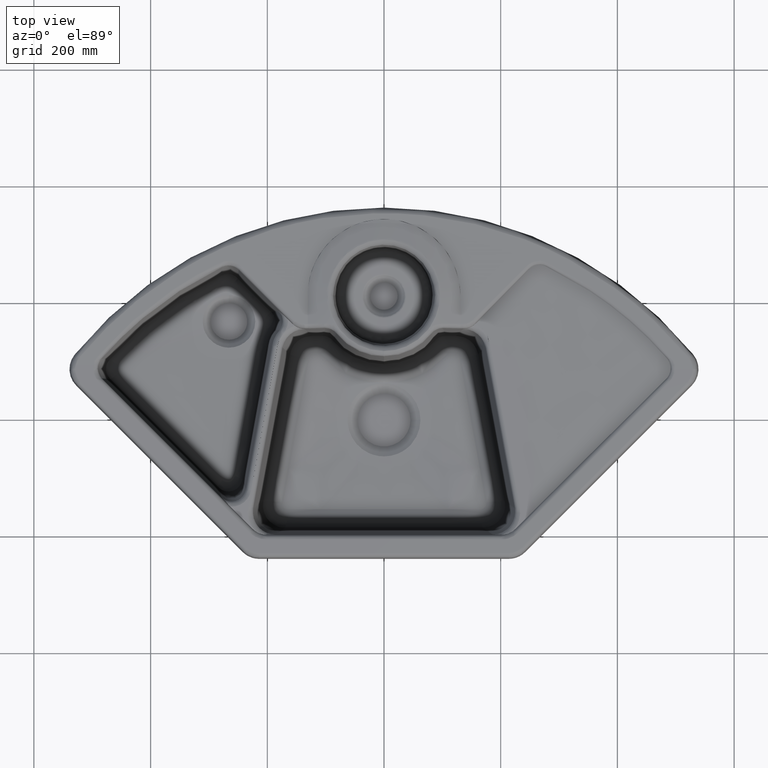
[diagram: clean part render]
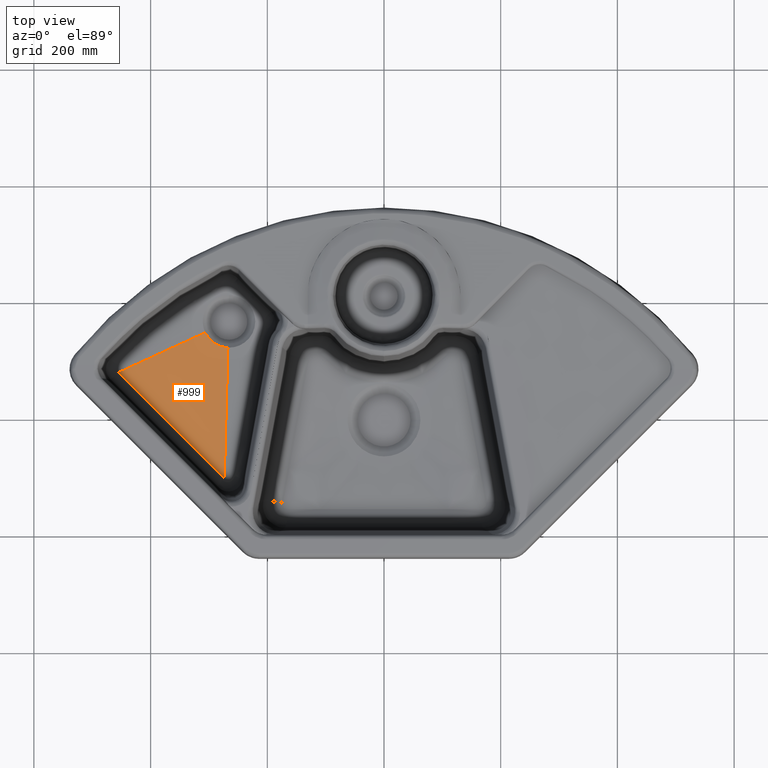
[diagram: same view with one face highlighted and labeled with its STEP entity id]
A machine part, top view. The second image highlights one B-rep face of the part: STEP entity #999.
In plain terms, the highlighted face is a freeform B-spline surface patch.
Its self-contained STEP definition (entity closure, byte-faithful):
#213=B_SPLINE_SURFACE_WITH_KNOTS('',3,1,((#26245,#26246),(#26247,#26248),
(#26249,#26250),(#26251,#26252),(#26253,#26254),(#26255,#26256),(#26257,
#26258)),.UNSPECIFIED.,.F.,.F.,.F.,(4,1,1,1,4),(2,2),(0.,0.25,0.5,0.75,1.),
(0.,1.),.UNSPECIFIED.);
#999=ADVANCED_FACE('',(#1568),#213,.F.);
#1568=FACE_OUTER_BOUND('',#2096,.T.);
#2096=EDGE_LOOP('',(#3639,#3640,#3641,#3642));
#3639=ORIENTED_EDGE('',*,*,#6566,.F.);
#3640=ORIENTED_EDGE('',*,*,#6642,.F.);
#3641=ORIENTED_EDGE('',*,*,#6643,.F.);
#3642=ORIENTED_EDGE('',*,*,#6644,.F.);
#5434=VERTEX_POINT('',#23123);
#5435=VERTEX_POINT('',#23124);
#5473=VERTEX_POINT('',#26235);
#5474=VERTEX_POINT('',#26242);
#6566=EDGE_CURVE('',#5434,#5435,#7962,.T.);
#6642=EDGE_CURVE('',#5473,#5434,#8030,.T.);
#6643=EDGE_CURVE('',#5474,#5473,#8031,.T.);
#6644=EDGE_CURVE('',#5435,#5474,#8032,.T.);
#7962=B_SPLINE_CURVE_WITH_KNOTS('',3,(#23119,#23120,#23121,#23122),.UNSPECIFIED.,
 .F.,.F.,(4,4),(0.,1.),.UNSPECIFIED.);
#8030=B_SPLINE_CURVE_WITH_KNOTS('',3,(#26228,#26229,#26230,#26231,#26232,
#26233,#26234),.UNSPECIFIED.,.F.,.F.,(4,1,1,1,4),(0.,0.124999373435028,0.249998746870056,
0.499997493740112,1.),.UNSPECIFIED.);
#8031=B_SPLINE_CURVE_WITH_KNOTS('',3,(#26236,#26237,#26238,#26239,#26240,
#26241),.UNSPECIFIED.,.F.,.F.,(4,2,4),(0.,0.5,1.),.UNSPECIFIED.);
#8032=B_SPLINE_CURVE_WITH_KNOTS('',1,(#26243,#26244),.UNSPECIFIED.,.F.,.F.,
(2,2),(0.,1.),.UNSPECIFIED.);
#23119=CARTESIAN_POINT('',(-273.77036591936,-100.701639683403,-118.));
#23120=CARTESIAN_POINT('',(-334.084285836055,-40.3877197667082,-118.));
#23121=CARTESIAN_POINT('',(-394.39820575261,19.9262001498467,-118.));
#23122=CARTESIAN_POINT('',(-454.712125669304,80.2401200665414,-118.));
#23123=CARTESIAN_POINT('',(-273.77036591936,-100.701639683403,-118.));
#23124=CARTESIAN_POINT('',(-454.712125669304,80.2401200665414,-118.));
#26228=CARTESIAN_POINT('',(-267.493104598134,122.921956911898,-126.));
#26229=CARTESIAN_POINT('',(-267.754657153185,113.604307053763,-125.666666666667));
#26230=CARTESIAN_POINT('',(-268.277762263287,94.9690073374907,-125.));
#26231=CARTESIAN_POINT('',(-269.323972483492,57.6984079049412,-123.666666666667));
#26232=CARTESIAN_POINT('',(-271.154850857201,-7.52551474313632,-121.333319966547));
#26233=CARTESIAN_POINT('',(-272.724176675859,-63.4317875330751,-119.33330659976));
#26234=CARTESIAN_POINT('',(-273.770397384414,-100.702760606722,-117.999959899641));
#26235=CARTESIAN_POINT('',(-267.493104598134,122.921956911898,-126.));
#26236=CARTESIAN_POINT('',(-306.266018214898,148.515306636718,-126.));
#26237=CARTESIAN_POINT('',(-302.764076150662,141.171375819323,-126.));
#26238=CARTESIAN_POINT('',(-297.227997946946,134.810242353617,-126.));
#26239=CARTESIAN_POINT('',(-283.647504837376,125.84598671309,-126.));
#26240=CARTESIAN_POINT('',(-275.622408948423,123.25561669718,-126.));
#26241=CARTESIAN_POINT('',(-267.493104598134,122.921956911898,-126.));
#26242=CARTESIAN_POINT('',(-306.266018214898,148.515306636718,-126.));
#26243=CARTESIAN_POINT('',(-454.712125669304,80.2401200665413,-118.));
#26244=CARTESIAN_POINT('',(-306.266018214898,148.515306636718,-126.));
#26245=CARTESIAN_POINT('',(-273.77036591936,-100.701639683403,-118.));
#26246=CARTESIAN_POINT('',(-267.493104598134,122.921956911898,-126.));
#26247=CARTESIAN_POINT('',(-288.848845898522,-85.6231597042408,-118.));
#26248=CARTESIAN_POINT('',(-271.557756773279,123.088786804539,-126.));
#26249=CARTESIAN_POINT('',(-319.005805856846,-55.4661997459168,-118.));
#26250=CARTESIAN_POINT('',(-279.641158168018,124.531589843801,-126.));
#26251=CARTESIAN_POINT('',(-364.241245794332,-10.2307598084307,-118.));
#26252=CARTESIAN_POINT('',(-290.743521188381,129.864885372251,-126.));
#26253=CARTESIAN_POINT('',(-409.476685731818,35.0046801290553,-118.));
#26254=CARTESIAN_POINT('',(-300.011265429613,137.977555866121,-126.));
#26255=CARTESIAN_POINT('',(-439.633645690142,65.1616400873793,-118.));
#26256=CARTESIAN_POINT('',(-304.51504718278,144.843341228021,-126.));
#26257=CARTESIAN_POINT('',(-454.712125669304,80.2401200665413,-118.));
#26258=CARTESIAN_POINT('',(-306.266018214898,148.515306636718,-126.));